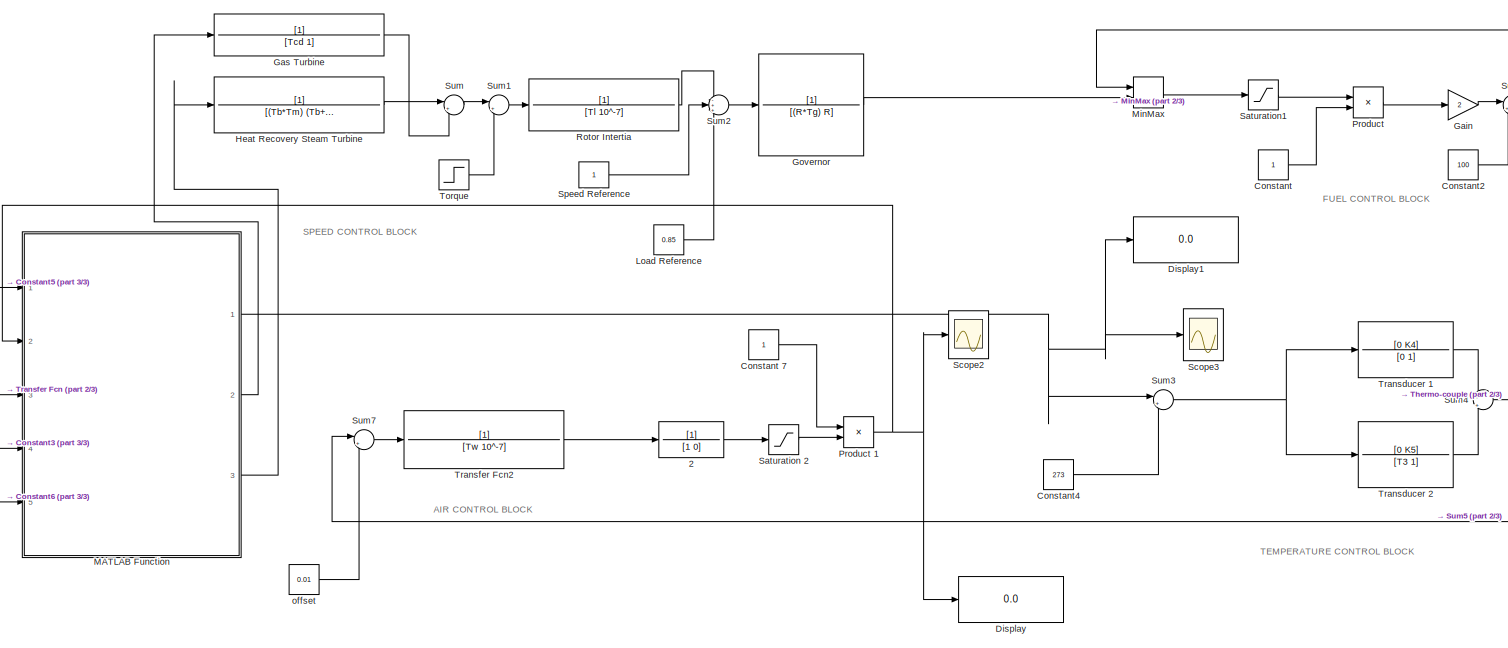
[diagram: root canvas - part 1/3, most of the canvas]
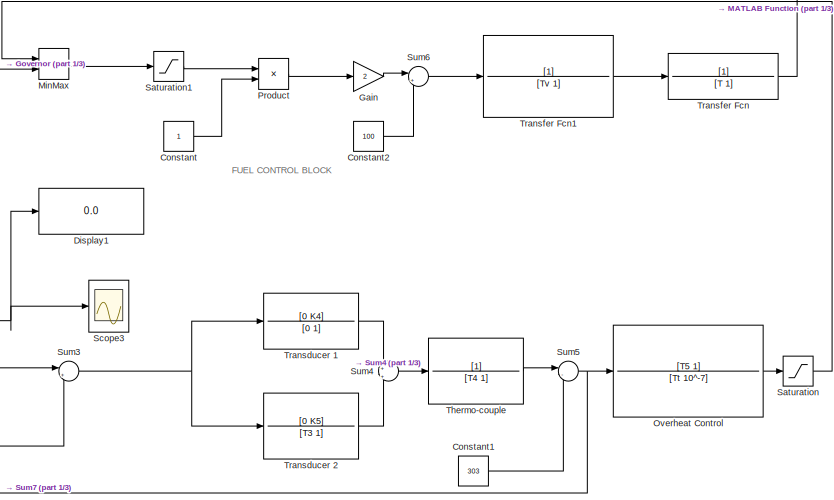
[diagram: root canvas - part 2/3, middle right region]
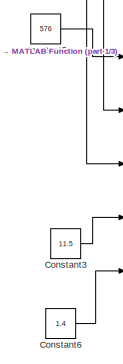
[diagram: root canvas - part 3/3, middle left region]
MODEL slx_8b46daaa1ae2
KIND model
CONFIG AbsTol = auto
CONFIG EnableMultiTasking = off
CONFIG FixedStep = auto
CONFIG MaxStep = auto
CONFIG MinStep = auto
CONFIG RelTol = 1e-3
CONFIG SampleTimeConstraint = Unconstrained
CONFIG SolverName = VariableStepAuto
CONFIG StartTime = 0.0
CONFIG StopTime = 0.05
WORKSPACE source: mxarray member
WORKSPACE K4: Simulink.Parameter (value not decoded)
WORKSPACE K5: Simulink.Parameter (value not decoded)
WORKSPACE R: Simulink.Parameter (value not decoded)
WORKSPACE T: Simulink.Parameter (value not decoded)
WORKSPACE T3: Simulink.Parameter (value not decoded)
WORKSPACE T4: Simulink.Parameter (value not decoded)
WORKSPACE T5: Simulink.Parameter (value not decoded)
WORKSPACE Tb: Simulink.Parameter (value not decoded)
WORKSPACE Tcd: Simulink.Parameter (value not decoded)
WORKSPACE Tg: Simulink.Parameter (value not decoded)
WORKSPACE Tl: Simulink.Parameter (value not decoded)
WORKSPACE Tm: Simulink.Parameter (value not decoded)
WORKSPACE Tt: Simulink.Parameter (value not decoded)
WORKSPACE Tv: Simulink.Parameter (value not decoded)
WORKSPACE Tw: Simulink.Parameter (value not decoded)
BLOCK [TransferFcn] 2
  Denominator = [1 0]
BLOCK [Constant] Constant
BLOCK [Constant] Constant 7
BLOCK [Constant] Constant1
  Value = 303
BLOCK [Constant] Constant2
  Value = 100
BLOCK [Constant] Constant3
  Value = 11.5
BLOCK [Constant] Constant4
  Value = 273
BLOCK [Constant] Constant5
  Value = 576
BLOCK [Constant] Constant6
  Value = 1.4
BLOCK [Display] Display
  Decimation = 1
  Ports = [1]
BLOCK [Display] Display1
  Decimation = 1
  Ports = [1]
BLOCK [Gain] Gain
  Gain = 2
BLOCK [TransferFcn] Gas Turbine
  Denominator = [Tcd 1]
BLOCK [TransferFcn] Governor
  Denominator = [(R*Tg) R]
BLOCK [TransferFcn] Heat Recovery Steam Turbine
  Denominator = [(Tb*Tm) (Tb+Tm) 1]
BLOCK [Constant] Load Reference
  Value = 0.85
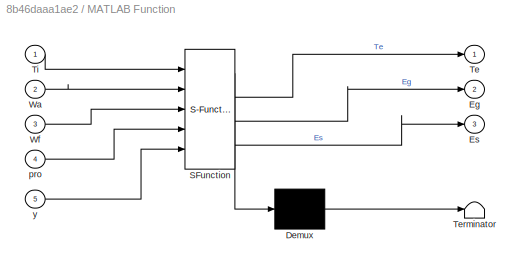
BLOCK [SubSystem] MATLAB Function
  ErrorFcn = Stateflow.Translate.translate
  PermitHierarchicalResolution = ExplicitOnly
  Ports = [5, 3]
  RequestExecContextInheritance = off
  SFBlockType = MATLAB Function
  TreatAsAtomicUnit = on
BLOCK [Demux] MATLAB Function/ Demux 
  Outputs = 1
  Ports = [1, 1]
BLOCK [S-Function] MATLAB Function/ SFunction 
  EnableBusSupport = on
  FunctionName = sf_sfun
  PortCounts = [5 4]
  Ports = [5, 4]
  SFcnIsStateOwnerBlock = off
  SFunctionDeploymentMode = off
  Tag = Stateflow S-Function 2
BLOCK [Terminator] MATLAB Function/ Terminator 
BLOCK [Outport] MATLAB Function/Eg
  Port = 2
BLOCK [Outport] MATLAB Function/Es
  Port = 3
BLOCK [Outport] MATLAB Function/Te
BLOCK [Inport] MATLAB Function/Ti
BLOCK [Inport] MATLAB Function/Wa
  Port = 2
BLOCK [Inport] MATLAB Function/Wf
  Port = 3
BLOCK [Inport] MATLAB Function/pro
  Port = 4
BLOCK [Inport] MATLAB Function/y
  Port = 5
BLOCK [MinMax] MinMax
  Inputs = 2
  Ports = [2, 1]
BLOCK [TransferFcn] Overheat Control
  Denominator = [Tt 10^-7]
  Numerator = [T5 1]
BLOCK [Product] Product
  Ports = [2, 1]
BLOCK [Product] Product 1
  Ports = [2, 1]
BLOCK [TransferFcn] Rotor Intertia
  Denominator = [Tl 10^-7]
BLOCK [Saturate] Saturation
  LowerLimit = 0
  UpperLimit = 1.1
BLOCK [Saturate] Saturation 2
BLOCK [Saturate] Saturation1
  LowerLimit = -0.1
  UpperLimit = 1.5
BLOCK [Scope] Scope2
  Floating = off
  NumInputPorts = 1
  Ports = [1]
  ScopeSpecificationString = Simulink.scopes.TimeScopeBlockCfg('CurrentConfiguration', extmgr.ConfigurationSet(extmgr.Configuration('Core','General UI',true),extmgr.Configuration('Core','Source UI',true),extmgr.Configuration('Sources','WiredSimulink',true,'DataLoggingVariableName','ScopeData3'),extmgr.Configuration('Visuals','Time Domain',true,'SerializedDisplays',{struct('MinYLimReal','-0.00019','MaxYLimReal','0.0017','YLabe...<+1499ch>
BLOCK [Scope] Scope3
  Floating = off
  NumInputPorts = 1
  Ports = [1]
  ScopeSpecificationString = Simulink.scopes.TimeScopeBlockCfg('CurrentConfiguration', extmgr.ConfigurationSet(extmgr.Configuration('Core','General UI',true),extmgr.Configuration('Core','Source UI',true),extmgr.Configuration('Sources','WiredSimulink',true,'DataLoggingVariableName','ScopeData4'),extmgr.Configuration('Visuals','Time Domain',true,'SerializedDisplays',{struct('MinYLimReal','709.86792','MaxYLimReal','909.86792','Y...<+1420ch>
BLOCK [Constant] Speed Reference
BLOCK [Sum] Sum
  Inputs = |++
  Ports = [2, 1]
BLOCK [Sum] Sum1
  Inputs = |+-
  Ports = [2, 1]
BLOCK [Sum] Sum2
  Inputs = -++
  Ports = [3, 1]
BLOCK [Sum] Sum3
  Inputs = |+-
  Ports = [2, 1]
BLOCK [Sum] Sum4
  Inputs = +|+
  Ports = [2, 1]
BLOCK [Sum] Sum5
  Inputs = |-+
  Ports = [2, 1]
BLOCK [Sum] Sum6
  Inputs = |++
  Ports = [2, 1]
BLOCK [Sum] Sum7
  Inputs = |++
  Ports = [2, 1]
BLOCK [TransferFcn] Thermo-couple
  Denominator = [T4 1]
BLOCK [Step] Torque
  SampleTime = 0
BLOCK [TransferFcn] Transducer 1
  Denominator = [0 1]
  Numerator = [0 K4]
BLOCK [TransferFcn] Transducer 2
  Denominator = [T3 1]
  Numerator = [0 K5]
BLOCK [TransferFcn] Transfer Fcn
  Denominator = [T 1]
BLOCK [TransferFcn] Transfer Fcn1
  Denominator = [Tv 1]
BLOCK [TransferFcn] Transfer Fcn2
  Denominator = [Tw 10^-7]
BLOCK [Constant] offset
  Value = 0.01
ANNOTATION (root): AIR CONTROL BLOCK
ANNOTATION (root): FUEL CONTROL BLOCK
ANNOTATION (root): SPEED CONTROL BLOCK
ANNOTATION (root): TEMPERATURE CONTROL BLOCK
LINE 2:1 -> Saturation 2:1
LINE Constant 7:1 -> Product 1:1
LINE Constant1:1 -> Sum5:2
LINE Constant2:1 -> Sum6:2
LINE Constant3:1 -> MATLAB Function:4
LINE Constant4:1 -> Sum3:2
LINE Constant5:1 -> MATLAB Function:1
LINE Constant6:1 -> MATLAB Function:5
LINE Constant:1 -> Product:2
LINE Gain:1 -> Sum6:1
LINE Gas Turbine:1 -> Sum:2
LINE Governor:1 -> MinMax:2
LINE Heat Recovery Steam Turbine:1 -> Sum:1
LINE Load Reference:1 -> Sum2:3
NET MATLAB Function:1 -> Display1:1, Scope3:1, Sum3:1
LINE MATLAB Function:2 -> Gas Turbine:1
LINE MATLAB Function:3 -> Heat Recovery Steam Turbine:1
LINE MinMax:1 -> Saturation1:1
LINE Overheat Control:1 -> Saturation:1
NET Product 1:1 -> Display:1, MATLAB Function:2, Scope2:1
LINE Product:1 -> Gain:1
LINE Rotor Intertia:1 -> Sum2:1
LINE Saturation 2:1 -> Product 1:2
LINE Saturation1:1 -> Product:1
LINE Saturation:1 -> MinMax:1
LINE Speed Reference:1 -> Sum2:2
LINE Sum1:1 -> Rotor Intertia:1
LINE Sum2:1 -> Governor:1
NET Sum3:1 -> Transducer 1:1, Transducer 2:1
LINE Sum4:1 -> Thermo-couple:1
NET Sum5:1 -> Overheat Control:1, Sum7:1
LINE Sum6:1 -> Transfer Fcn1:1
LINE Sum7:1 -> Transfer Fcn2:1
LINE Sum:1 -> Sum1:1
LINE Thermo-couple:1 -> Sum5:1
LINE Torque:1 -> Sum1:2
LINE Transducer 1:1 -> Sum4:1
LINE Transducer 2:1 -> Sum4:2
LINE Transfer Fcn1:1 -> Transfer Fcn:1
LINE Transfer Fcn2:1 -> 2:1
LINE Transfer Fcn:1 -> MATLAB Function:3
LINE offset:1 -> Sum7:2
note: NET lines group one-source signal fan-out (src -> all destinations, sorted); 1:1 wires keep LINE
CHART MATLAB Function states=1 transitions=1
  STATE_LABEL 'eML_blk_kernel()'
  STATE_LABEL 'SCRIPT:\nfunction [Te,Eg, Es] = CCGT(Ti, Wa, Wf, pro, y)\n%Wf = [(1420 - 1000) / (1085 - 390)]*(0.865)\n\nx = (11.5*0.865)^(1.4 - 1/1.4);\n\nEg = (0.00303)*((1693 - 805) - (1273 - 303))*(0.865);\n\nEs = (0.000428)*805*0.865;\n\n%Te = 1693*(1 - (1 - 1/x)*(0.85));\n\nTe = 2485*(1 - (1 - 1/x)*(0.85));\n\n\n%Td = 1000 C = 1273 K\n%Tf = 1420 C = 1693 K\n%W = 0.865\n%Te = 532 C = 805 K\n%Ti = 30 C = 303 K\n%Tfu = T = 0.4\n\n...<+69ch>'
CHART  states=0 transitions=0
